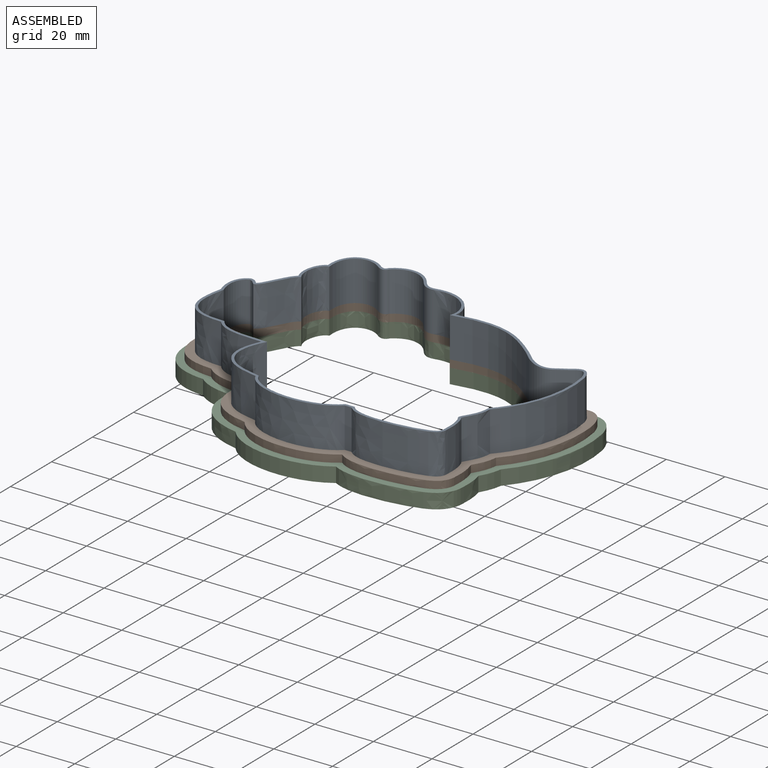
[diagram: assembled view]
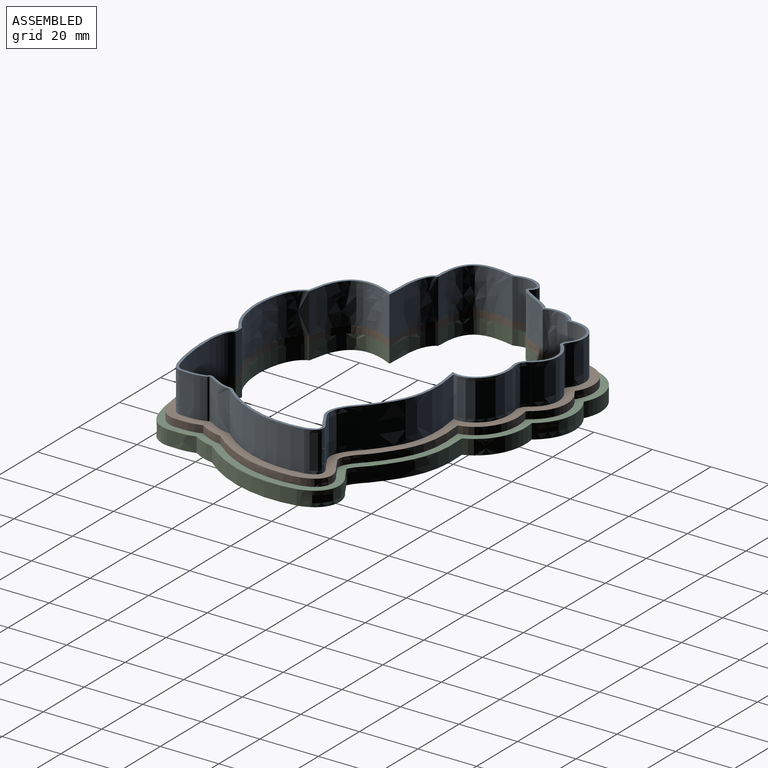
[diagram: assembled view, second angle]
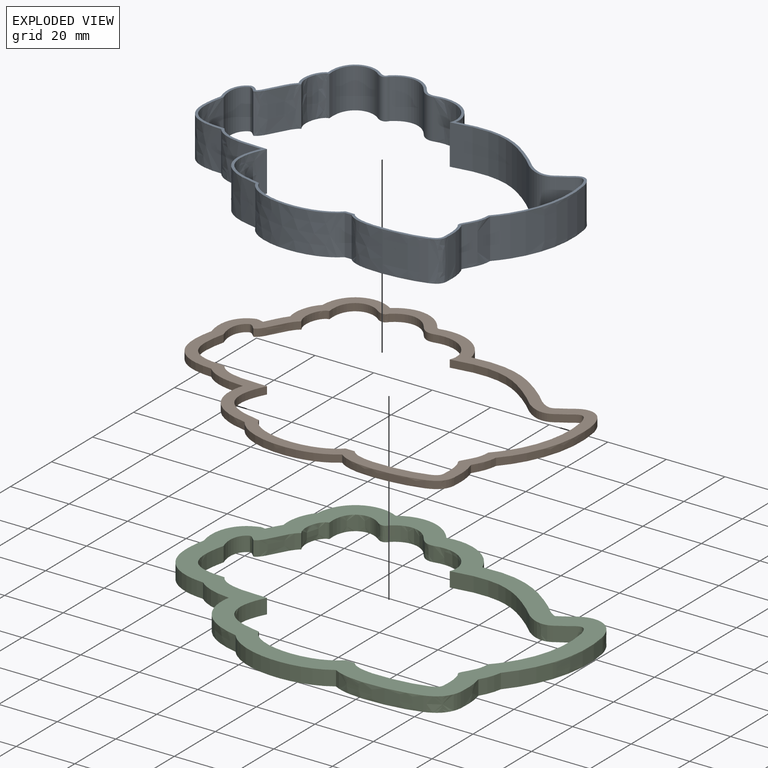
[diagram: exploded view]
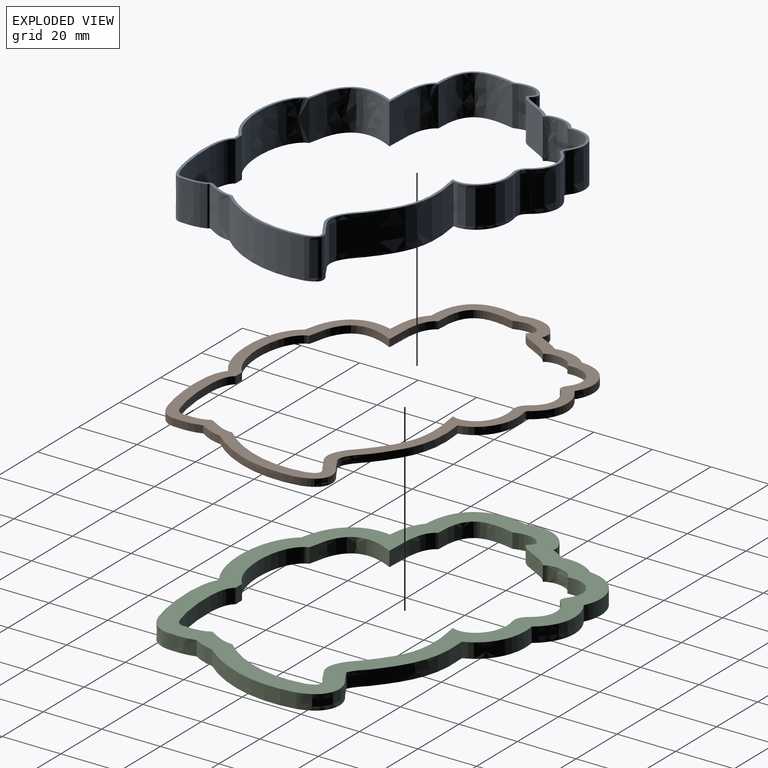
[diagram: exploded view, second angle]
ASSEMBLY  parts=3 mates=2
PART A: 50 faces, bbox 125.6x96.7x20.2 mm
  f0: plane 125.58x96.75mm, normal (0,0,1), area 323.9mm2, adj f2,f3,f4,f5,f6,f7,f8,f9
  f1: plane 125.58x96.75mm, normal (0,0,-1), area 323.9mm2, adj f2,f3,f4,f5,f6,f7,f8,f9
  f2: extruded ~13.72x10.53mm, area 162mm2, adj f0,f1,f3,f25
  f3: extruded ~13.72x10.7mm, area 176.6mm2, adj f0,f1,f2,f4
  f4: extruded ~13.72x2.71mm, area 44.9mm2, adj f0,f1,f3,f5
  f5: extruded ~13.72x10.7mm, area 169.4mm2, adj f0,f1,f4,f6
  f6: extruded ~17.66x13.72mm, area 370.6mm2, adj f0,f1,f5,f7
  f7: extruded ~16.65x13.72mm, area 244.7mm2, adj f0,f1,f6,f8
  f8: extruded ~19.55x14mm, area 390.4mm2, adj f0,f1,f7,f9
  f9: extruded ~31.64x13.72mm, area 481.2mm2, adj f0,f1,f8,f10
  f10: plane 13.72x2.35mm, normal (0,-1,0), area 32.3mm2, adj f0,f1,f9,f11
  f11: extruded ~26.68x13.72mm, area 378.3mm2, adj f0,f1,f10,f12
  f12: extruded ~13.72x4.41mm, area 86mm2, adj f0,f1,f11,f13
  f13: extruded ~13.72x7.78mm, area 108.4mm2, adj f0,f1,f12,f14
  f14: extruded ~13.72x1.42mm, area 22.9mm2, adj f0,f1,f13,f15
  f15: extruded ~13.72x8.29mm, area 122.9mm2, adj f0,f1,f14,f16
  f16: extruded ~32.23x13.72mm, area 478.6mm2, adj f0,f1,f15,f17
  f17: extruded ~13.72x6.79mm, area 132.1mm2, adj f0,f1,f16,f18
  f18: extruded ~13.72x3.26mm, area 52mm2, adj f0,f1,f17,f19
  f19: extruded ~13.72x12.29mm, area 196.7mm2, adj f0,f1,f18,f20
  f20: extruded ~31.14x13.72mm, area 463.9mm2, adj f0,f1,f19,f21
  f21: extruded ~14.91x13.72mm, area 296.3mm2, adj f0,f1,f20,f22
  f22: extruded ~13.72x4.2mm, area 68.9mm2, adj f0,f1,f21,f23
  f23: extruded ~14.16x13.72mm, area 224.4mm2, adj f0,f1,f22,f24
  f24: extruded ~13.72x2.94mm, area 49.6mm2, adj f0,f1,f23,f25
  f25: extruded ~13.72x12.18mm, area 261mm2, adj f0,f1,f2,f24
  f26: extruded ~13.72x10.1mm, area 160.8mm2, adj f0,f1,f27,f49
  f27: extruded ~13.72x11.55mm, area 198mm2, adj f0,f1,f26,f28
  f28: extruded ~13.72x2.45mm, area 42.8mm2, adj f0,f1,f27,f29
  f29: extruded ~13.72x9.73mm, area 151.3mm2, adj f0,f1,f28,f30
  f30: extruded ~16.83x13.72mm, area 359.1mm2, adj f0,f1,f29,f31
  f31: extruded ~17.59x13.72mm, area 258.8mm2, adj f0,f1,f30,f32
  f32: extruded ~19.65x13.77mm, area 394.2mm2, adj f0,f1,f31,f33
  f33: extruded ~30.63x13.72mm, area 468.6mm2, adj f0,f1,f32,f34
  f34: plane 13.72x3.16mm, normal (0,1,0), area 43.3mm2, adj f0,f1,f33,f35
  f35: extruded ~25.93x13.72mm, area 368.8mm2, adj f0,f1,f34,f36
  f36: extruded ~13.72x3.58mm, area 71.1mm2, adj f0,f1,f35,f37
  f37: extruded ~13.72x7.27mm, area 101.2mm2, adj f0,f1,f36,f38
  f38: extruded ~13.72x2.38mm, area 36.7mm2, adj f0,f1,f37,f39
  f39: extruded ~13.72x8.19mm, area 121.2mm2, adj f0,f1,f38,f40
  f40: extruded ~31.66x13.72mm, area 471.3mm2, adj f0,f1,f39,f41
  f41: extruded ~13.72x5.42mm, area 108.3mm2, adj f0,f1,f40,f42
  f42: extruded ~13.72x3.28mm, area 52.2mm2, adj f0,f1,f41,f43
  f43: extruded ~13.72x13.4mm, area 213.2mm2, adj f0,f1,f42,f44
  f44: extruded ~31.81x13.72mm, area 472.7mm2, adj f0,f1,f43,f45
  f45: extruded ~13.86x13.72mm, area 291.6mm2, adj f0,f1,f44,f46
  f46: extruded ~13.72x5.09mm, area 82.9mm2, adj f0,f1,f45,f47
  f47: extruded ~13.72x12.72mm, area 201.7mm2, adj f0,f1,f46,f48
  f48: extruded ~13.72x4.2mm, area 68.5mm2, adj f0,f1,f47,f49
  f49: extruded ~13.72x10.75mm, area 242.9mm2, adj f0,f1,f26,f48
PART B: 48 faces, bbox 126.6x97.4x4.6 mm
  f0: plane 126.61x97.4mm, normal (0,0,1), area 1406.1mm2, adj f2,f3,f4,f5,f6,f7,f8,f9
  f1: plane 126.61x97.4mm, normal (0,0,-1), area 1406.1mm2, adj f2,f3,f4,f5,f6,f7,f8,f9
  f2: extruded ~11.34x3.4mm, area 31.2mm2, adj f0,f1,f3,f23
  f3: extruded ~7.31x4.17mm, area 21.4mm2, adj f0,f1,f2,f4
  f4: extruded ~2.55x2.54mm, area 6.4mm2, adj f0,f1,f3,f5
  f5: extruded ~13.85x6.38mm, area 42.1mm2, adj f0,f1,f4,f6
  f6: extruded ~20.41x15.1mm, area 76.3mm2, adj f0,f1,f5,f7
  f7: extruded ~13.79x4.32mm, area 37.6mm2, adj f0,f1,f6,f8
  f8: extruded ~19.31x15.02mm, area 71.2mm2, adj f0,f1,f7,f9
  f9: extruded ~34.61x7.11mm, area 96.1mm2, adj f0,f1,f8,f10
  f10: plane 2.54x0.1mm, normal (0,-1,0), area 0.2mm2, adj f0,f1,f9,f11
  f11: extruded ~28.83x2.9mm, area 75.3mm2, adj f0,f1,f10,f12
  f12: extruded ~7.15x5.58mm, area 25mm2, adj f0,f1,f11,f13
  f13: extruded ~8.39x2.54mm, area 21.6mm2, adj f0,f1,f12,f14
  f14: extruded ~7.91x3.02mm, area 21.7mm2, adj f0,f1,f13,f15
  f15: extruded ~34.11x10.35mm, area 93.2mm2, adj f0,f1,f14,f16
  f16: extruded ~11.3x6.46mm, area 38.9mm2, adj f0,f1,f15,f17
  f17: extruded ~3.22x2.54mm, area 9.5mm2, adj f0,f1,f16,f18
  f18: extruded ~8.65x4.64mm, area 26.5mm2, adj f0,f1,f17,f19
  f19: extruded ~30.3x10.41mm, area 84.2mm2, adj f0,f1,f18,f20
  f20: extruded ~18.16x10.74mm, area 59.1mm2, adj f0,f1,f19,f21
  f21: extruded ~2.54x1.29mm, area 4.3mm2, adj f0,f1,f20,f22
  f22: extruded ~17.96x5.57mm, area 52.3mm2, adj f0,f1,f21,f23
  f23: extruded ~16.63x11.23mm, area 60.2mm2, adj f0,f1,f2,f22
  f24: extruded ~10.1x3.5mm, area 29.8mm2, adj f0,f1,f25,f47
  f25: extruded ~11.55x8.3mm, area 36.7mm2, adj f0,f1,f24,f26
  f26: extruded ~2.54x2.45mm, area 7.9mm2, adj f0,f1,f25,f27
  f27: extruded ~9.73x3.06mm, area 28mm2, adj f0,f1,f26,f28
  f28: extruded ~16.83x13.18mm, area 66.5mm2, adj f0,f1,f27,f29
  f29: extruded ~17.59x4.39mm, area 47.9mm2, adj f0,f1,f28,f30
  f30: extruded ~19.65x13.77mm, area 73mm2, adj f0,f1,f29,f31
  f31: extruded ~30.63x6.67mm, area 86.8mm2, adj f0,f1,f30,f32
  f32: plane 3.16x2.54mm, normal (0,1,0), area 8mm2, adj f0,f1,f31,f33
  f33: extruded ~25.93x2.9mm, area 68.3mm2, adj f0,f1,f32,f34
  f34: extruded ~3.58x3.04mm, area 13.2mm2, adj f0,f1,f33,f35
  f35: extruded ~7.27x2.54mm, area 18.7mm2, adj f0,f1,f34,f36
  f36: extruded ~2.54x2.38mm, area 6.8mm2, adj f0,f1,f35,f37
  f37: extruded ~8.19x2.95mm, area 22.4mm2, adj f0,f1,f36,f38
  f38: extruded ~31.66x10.27mm, area 87.3mm2, adj f0,f1,f37,f39
  f39: extruded ~5.42x3.52mm, area 20.1mm2, adj f0,f1,f38,f40
  f40: extruded ~3.28x2.54mm, area 9.7mm2, adj f0,f1,f39,f41
  f41: extruded ~13.4x5.67mm, area 39.5mm2, adj f0,f1,f40,f42
  f42: extruded ~31.81x9.38mm, area 87.5mm2, adj f0,f1,f41,f43
  f43: extruded ~13.86x11.49mm, area 54mm2, adj f0,f1,f42,f44
  f44: extruded ~5.09x2.58mm, area 15.4mm2, adj f0,f1,f43,f45
  f45: extruded ~12.72x3.94mm, area 37.3mm2, adj f0,f1,f44,f46
  f46: extruded ~4.2x2.54mm, area 12.7mm2, adj f0,f1,f45,f47
  f47: extruded ~10.75x9.6mm, area 45mm2, adj f0,f1,f24,f46
PART C: 47 faces, bbox 133.2x104x8.6 mm
  f0: plane 133.2x103.98mm, normal (0,0,1), area 2375.2mm2, adj f2,f3,f4,f5,f6,f7,f8,f9
  f1: plane 133.2x103.98mm, normal (0,0,-1), area 2375.2mm2, adj f2,f3,f4,f5,f6,f7,f8,f9
  f2: extruded ~5.08x0.39mm, area 2.4mm2, adj f0,f1,f17,f18
  f3: extruded ~11.84x5.08mm, area 64.3mm2, adj f0,f1,f4,f22
  f4: extruded ~5.08x4.96mm, area 28.9mm2, adj f0,f1,f3,f5
  f5: extruded ~5.08x1.55mm, area 7.9mm2, adj f0,f1,f4,f6
  f6: extruded ~16.55x8.6mm, area 103mm2, adj f0,f1,f5,f7
  f7: extruded ~22.81x16.57mm, area 167mm2, adj f0,f1,f6,f8
  f8: extruded ~11.7x5.08mm, area 64.2mm2, adj f0,f1,f7,f9
  f9: extruded ~19.25x16.09mm, area 142.6mm2, adj f0,f1,f8,f10
  f10: extruded ~36.2x7.36mm, area 198.6mm2, adj f0,f1,f9,f11
  f11: extruded ~29.66x5.08mm, area 153.9mm2, adj f0,f1,f10,f12
  f12: extruded ~9.51x7.27mm, area 65.7mm2, adj f0,f1,f11,f13
  f13: extruded ~8.11x5.08mm, area 41.6mm2, adj f0,f1,f12,f14
  f14: extruded ~7.14x5.08mm, area 39mm2, adj f0,f1,f13,f15
  f15: extruded ~35.78x10.47mm, area 194.8mm2, adj f0,f1,f14,f16
  f16: extruded ~15.21x8.41mm, area 102.6mm2, adj f0,f1,f15,f17
  f17: extruded ~5.08x3.2mm, area 18.9mm2, adj f0,f1,f2,f16
  f18: extruded ~5.1x5.08mm, area 33.2mm2, adj f0,f1,f2,f19
  f19: extruded ~30.2x11.11mm, area 168.7mm2, adj f0,f1,f18,f20
  f20: extruded ~19.44x10.52mm, area 121mm2, adj f0,f1,f19,f21
  f21: extruded ~19.96x6.34mm, area 114.7mm2, adj f0,f1,f20,f22
  f22: extruded ~18.97x12.67mm, area 133.5mm2, adj f0,f1,f3,f21
  f23: extruded ~10.1x5.08mm, area 59.6mm2, adj f0,f1,f24,f46
  f24: extruded ~11.55x8.3mm, area 73.3mm2, adj f0,f1,f23,f25
  f25: extruded ~5.08x2.45mm, area 15.8mm2, adj f0,f1,f24,f26
  f26: extruded ~9.73x5.08mm, area 56mm2, adj f0,f1,f25,f27
  f27: extruded ~16.83x13.18mm, area 133mm2, adj f0,f1,f26,f28
  f28: extruded ~17.59x5.08mm, area 95.8mm2, adj f0,f1,f27,f29
  f29: extruded ~19.65x13.77mm, area 146mm2, adj f0,f1,f28,f30
  f30: extruded ~30.63x6.67mm, area 173.6mm2, adj f0,f1,f29,f31
  f31: plane 5.08x3.16mm, normal (0,1,0), area 16.1mm2, adj f0,f1,f30,f32
  f32: extruded ~25.93x5.08mm, area 136.6mm2, adj f0,f1,f31,f33
  f33: extruded ~5.08x3.58mm, area 26.3mm2, adj f0,f1,f32,f34
  f34: extruded ~7.27x5.08mm, area 37.5mm2, adj f0,f1,f33,f35
  f35: extruded ~5.08x2.38mm, area 13.6mm2, adj f0,f1,f34,f36
  f36: extruded ~8.19x5.08mm, area 44.9mm2, adj f0,f1,f35,f37
  f37: extruded ~31.66x10.27mm, area 174.5mm2, adj f0,f1,f36,f38
  f38: extruded ~5.42x5.08mm, area 40.1mm2, adj f0,f1,f37,f39
  f39: extruded ~5.08x3.28mm, area 19.3mm2, adj f0,f1,f38,f40
  f40: extruded ~13.4x5.67mm, area 79mm2, adj f0,f1,f39,f41
  f41: extruded ~31.81x9.38mm, area 175.1mm2, adj f0,f1,f40,f42
  f42: extruded ~13.86x11.49mm, area 108mm2, adj f0,f1,f41,f43
  f43: extruded ~5.09x5.08mm, area 30.7mm2, adj f0,f1,f42,f44
  f44: extruded ~12.72x5.08mm, area 74.7mm2, adj f0,f1,f43,f45
  f45: extruded ~5.08x4.2mm, area 25.4mm2, adj f0,f1,f44,f46
  f46: extruded ~10.75x9.6mm, area 89.9mm2, adj f0,f1,f23,f45
PLACE A t=(119.83,-13.45,7.62)mm
PLACE B t=(237.9,7.81,5.08)mm
PLACE C at identity
MATE fastened B.f1 <-> C.f0  axis (0,0,1) through (90.39,-32.49,5.08)mm
MATE fastened A.f1 <-> B.f0  axis (0,0,-1) through (90.39,-32.49,7.62)mm
